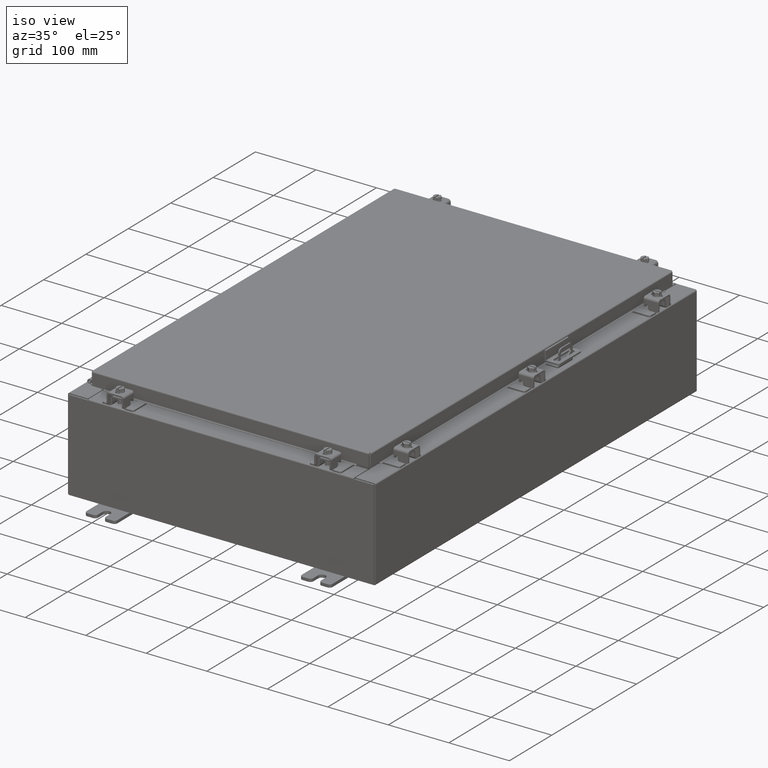
[diagram: clean part render]
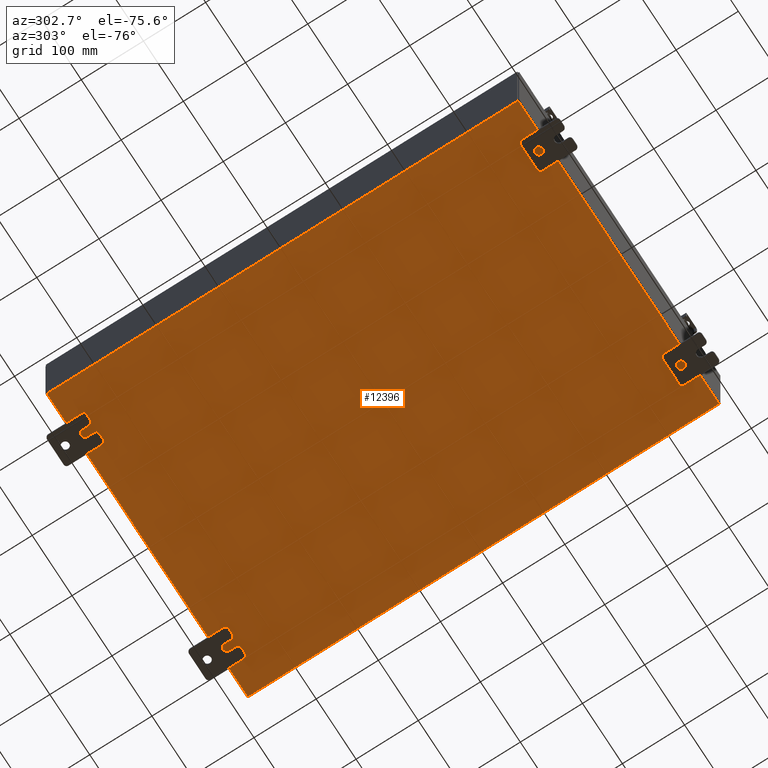
[diagram: tour spotlight — one face highlighted and labeled with its STEP entity id]
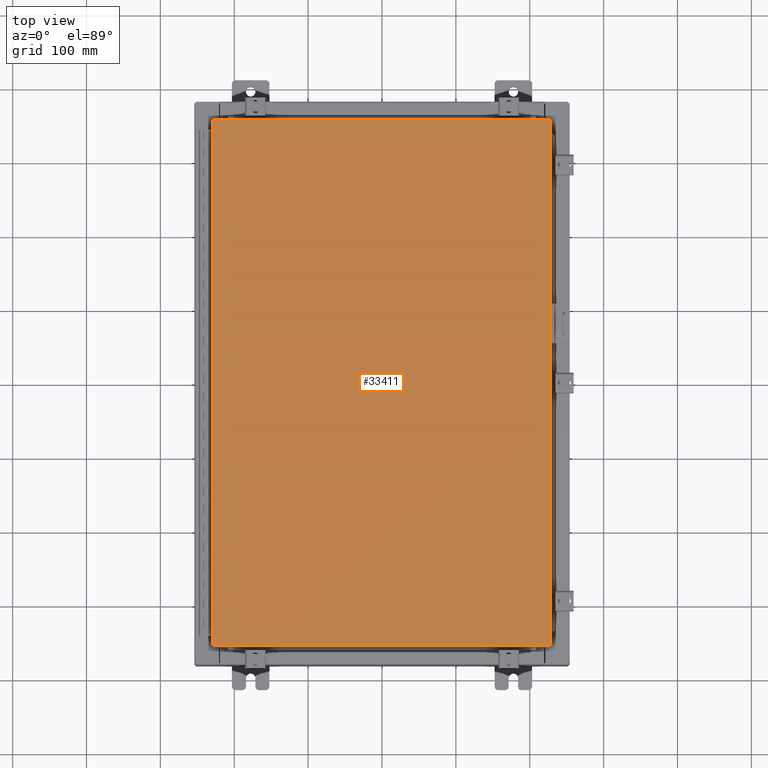
[diagram: tour spotlight — one face highlighted and labeled with its STEP entity id]
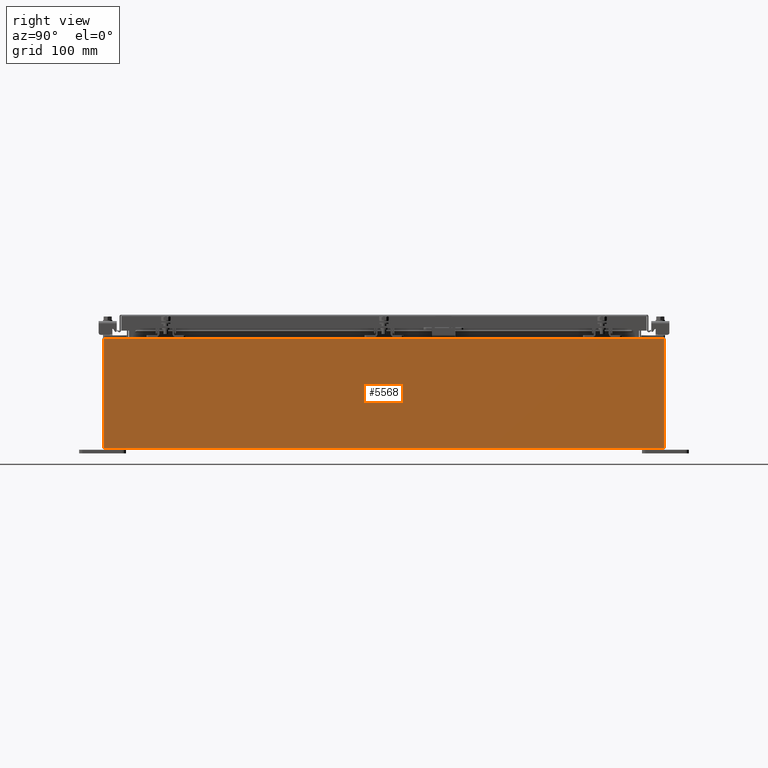
[diagram: tour spotlight — one face highlighted and labeled with its STEP entity id]
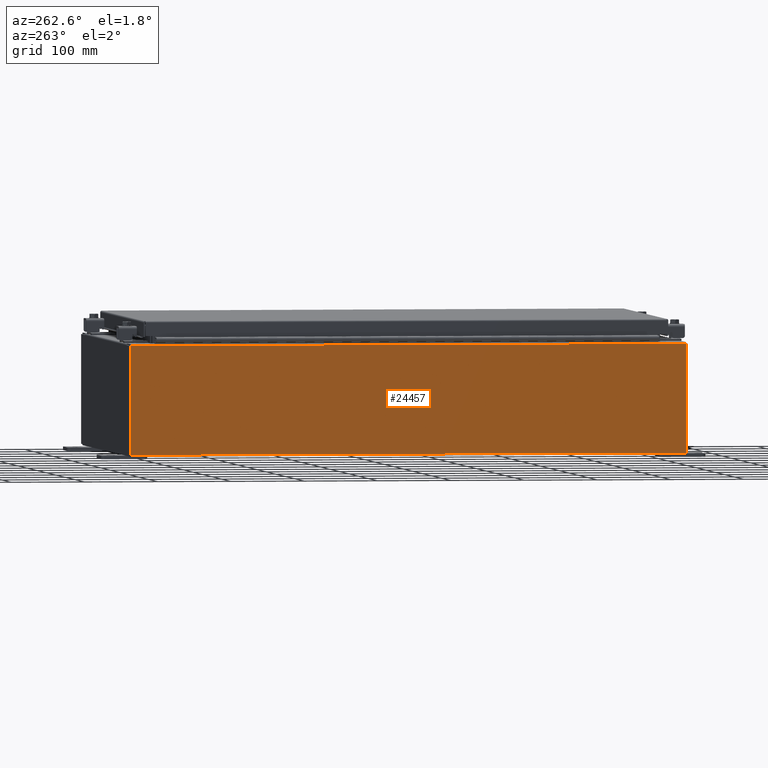
[diagram: tour spotlight — one face highlighted and labeled with its STEP entity id]
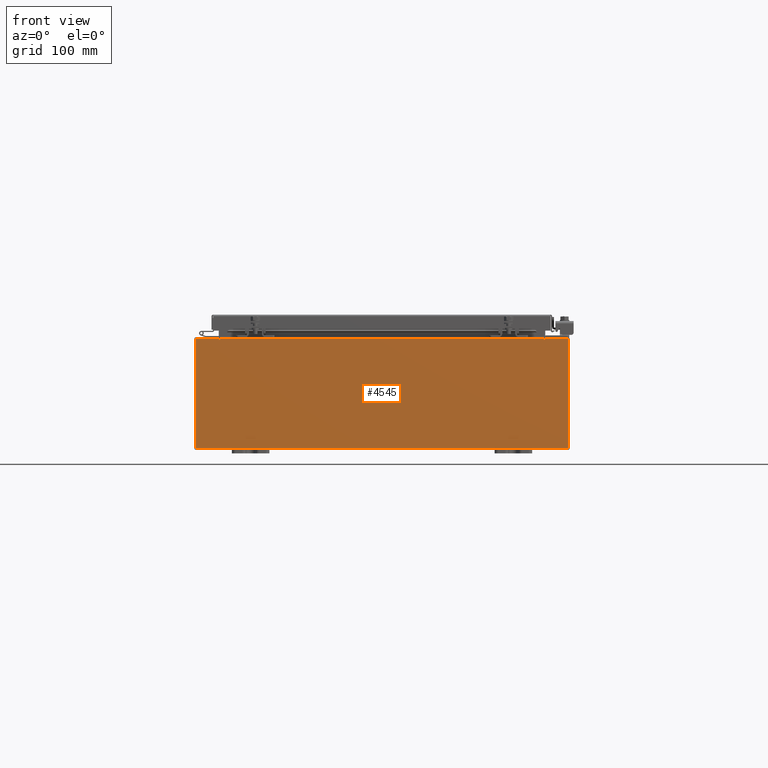
[diagram: tour spotlight — one face highlighted and labeled with its STEP entity id]
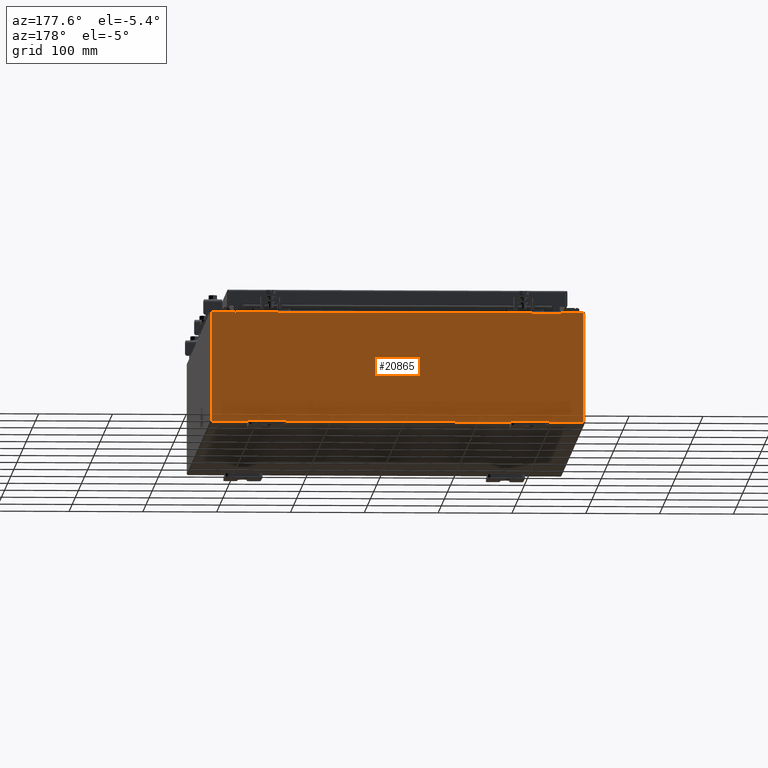
[diagram: tour spotlight — one face highlighted and labeled with its STEP entity id]
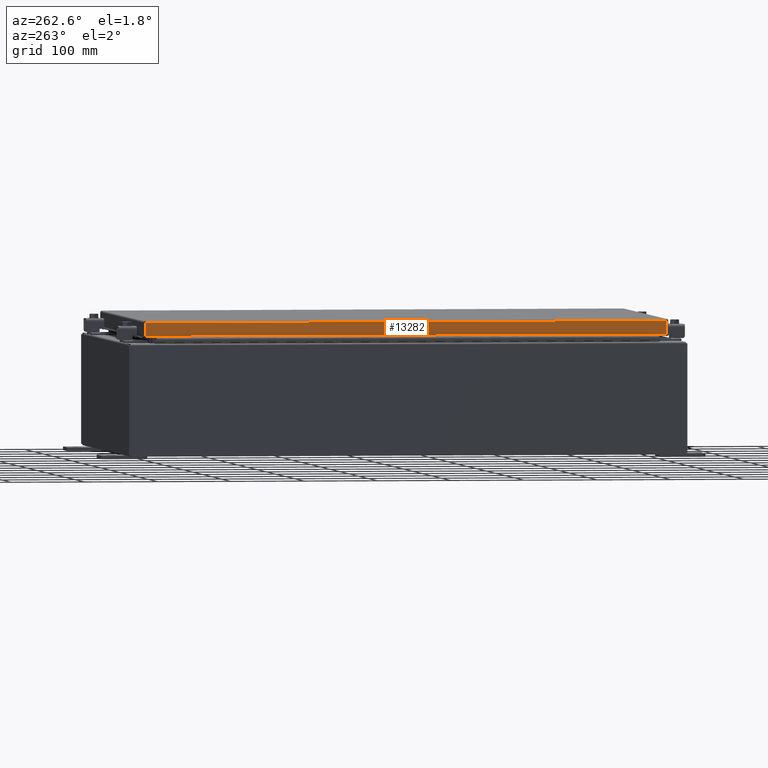
[diagram: tour spotlight — one face highlighted and labeled with its STEP entity id]
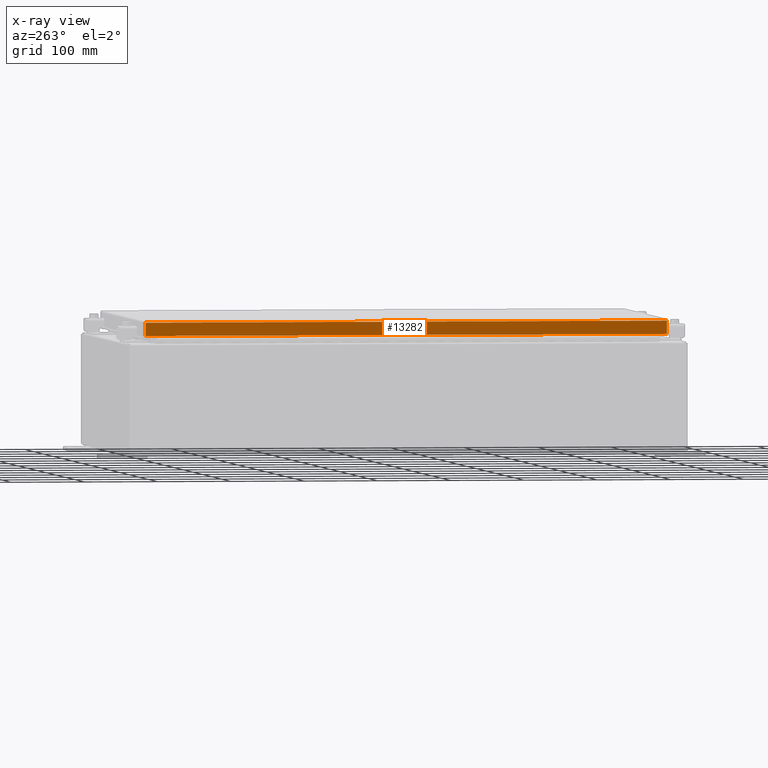
[diagram: x-ray of the same camera — body ghosted, this tour face saturated]
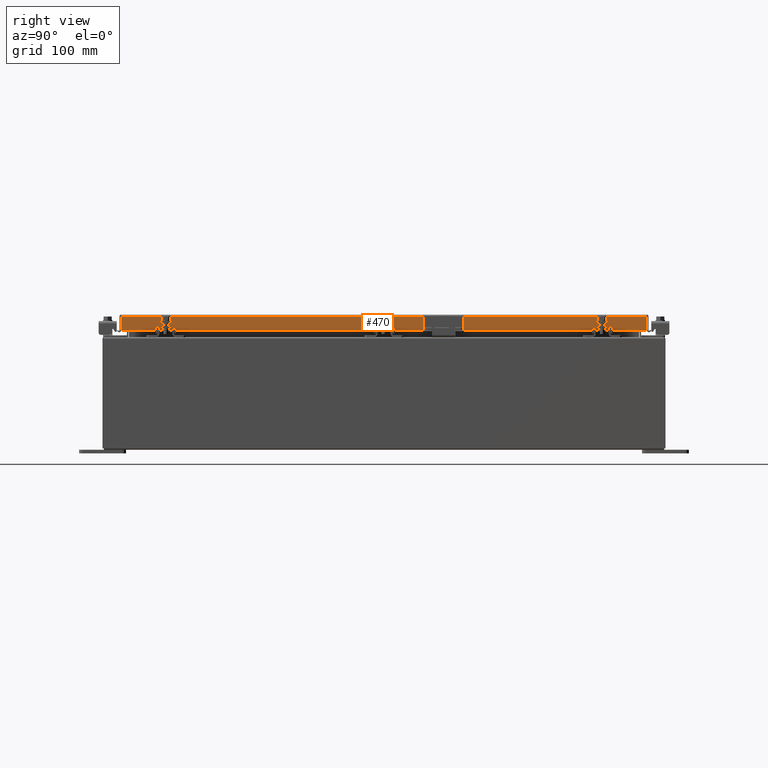
[diagram: tour spotlight — one face highlighted and labeled with its STEP entity id]
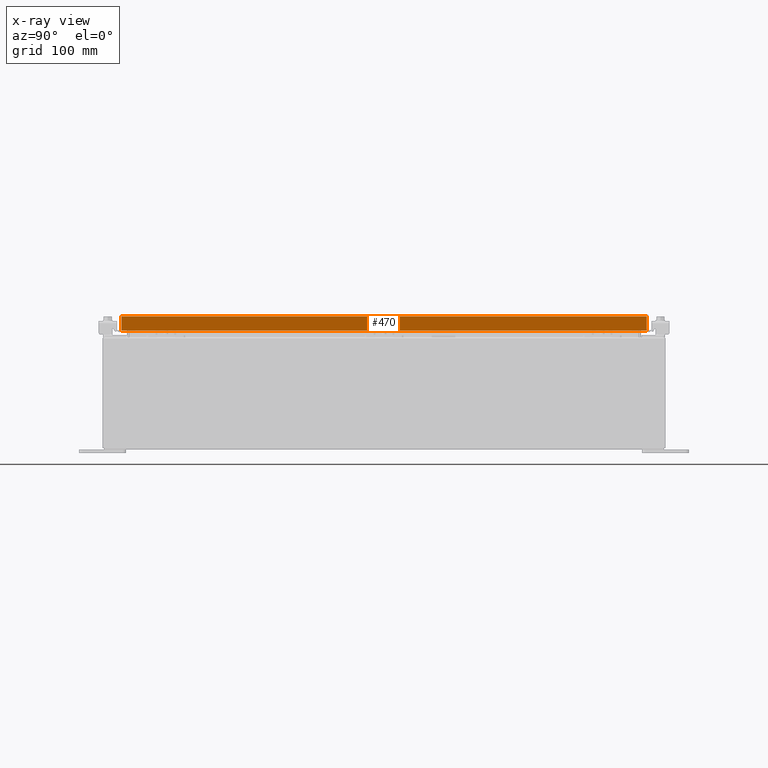
[diagram: x-ray of the same camera — body ghosted, this tour face saturated]
A machine part: a face-by-face anatomy tour. The part has 1990 B-rep faces; the first image is the clean iso view, then the 8 largest visible faces are spotlighted one at a time (largest first), each with its STEP entity span.

Face 1 — auxiliary view, entity #12396. In plain terms, the highlighted planar face has unit normal (0, 0, -1).
Definition (entity closure, byte-faithful):
#1669 = ORIENTED_EDGE ( 'NONE', *, *, #35438, .F. ) ;
#2707 = CARTESIAN_POINT ( 'NONE',  ( 0.0000000000000000000, 0.0000000000000000000, -0.07470000000000000300 ) ) ;
#4212 = VERTEX_POINT ( 'NONE', #4553 ) ;
#4553 = CARTESIAN_POINT ( 'NONE',  ( -9.912300000000000100, 14.92530000000000500, -0.07470000000000000300 ) ) ;
#6361 = EDGE_CURVE ( 'NONE', #30155, #15652, #19393, .T. ) ;
#6586 = VECTOR ( 'NONE', #32622, 39.37007874015748100 ) ;
#7478 = CARTESIAN_POINT ( 'NONE',  ( -10.00000000000000000, 14.92530000000000500, -0.07470000000000000300 ) ) ;
#9492 = EDGE_CURVE ( 'NONE', #30320, #4212, #29648, .T. ) ;
#11417 = DIRECTION ( 'NONE',  ( 0.0000000000000000000, 0.0000000000000000000, -1.000000000000000000 ) ) ;
#12332 = ORIENTED_EDGE ( 'NONE', *, *, #9492, .T. ) ;
#12375 = CARTESIAN_POINT ( 'NONE',  ( -9.912300000000000100, -14.92529999999999600, -0.07469999999999994700 ) ) ;
#12396 = ADVANCED_FACE ( 'NONE', ( #29039 ), #14226, .T. ) ;
#13120 = LINE ( 'NONE', #7478, #28488 ) ;
#13582 = CARTESIAN_POINT ( 'NONE',  ( 9.912300000000000100, 14.92530000000000500, -0.07469999999999994700 ) ) ;
#14226 = PLANE ( 'NONE',  #25449 ) ;
#14411 = CARTESIAN_POINT ( 'NONE',  ( -9.912300000000000100, -14.92529999999999600, -0.07469999999999994700 ) ) ;
#15652 = VERTEX_POINT ( 'NONE', #15908 ) ;
#15793 = VECTOR ( 'NONE', #30828, 39.37007874015748100 ) ;
#15908 = CARTESIAN_POINT ( 'NONE',  ( 9.912300000000000100, -14.92529999999999600, -0.07470000000000000300 ) ) ;
#16587 = EDGE_LOOP ( 'NONE', ( #22962, #12332, #1669, #20972 ) ) ;
#16951 = VECTOR ( 'NONE', #17139, 39.37007874015748100 ) ;
#17139 = DIRECTION ( 'NONE',  ( 1.000000000000000000, 0.0000000000000000000, 0.0000000000000000000 ) ) ;
#19393 = LINE ( 'NONE', #24874, #15793 ) ;
#20972 = ORIENTED_EDGE ( 'NONE', *, *, #6361, .T. ) ;
#22962 = ORIENTED_EDGE ( 'NONE', *, *, #30829, .F. ) ;
#24874 = CARTESIAN_POINT ( 'NONE',  ( 9.912300000000000100, 14.92530000000000500, -0.07469999999999994700 ) ) ;
#25449 = AXIS2_PLACEMENT_3D ( 'NONE', #2707, #11417, #31676 ) ;
#28488 = VECTOR ( 'NONE', #30590, 39.37007874015748100 ) ;
#29039 = FACE_OUTER_BOUND ( 'NONE', #16587, .T. ) ;
#29648 = LINE ( 'NONE', #12375, #6586 ) ;
#30155 = VERTEX_POINT ( 'NONE', #13582 ) ;
#30320 = VERTEX_POINT ( 'NONE', #14411 ) ;
#30590 = DIRECTION ( 'NONE',  ( -1.000000000000000000, -0.0000000000000000000, -0.0000000000000000000 ) ) ;
#30828 = DIRECTION ( 'NONE',  ( -0.0000000000000000000, -1.000000000000000000, -0.0000000000000000000 ) ) ;
#30829 = EDGE_CURVE ( 'NONE', #30320, #15652, #33272, .T. ) ;
#31676 = DIRECTION ( 'NONE',  ( -1.000000000000000000, 0.0000000000000000000, -0.0000000000000000000 ) ) ;
#31715 = CARTESIAN_POINT ( 'NONE',  ( -10.00000000000000000, -14.92529999999999600, -0.07470000000000000300 ) ) ;
#32622 = DIRECTION ( 'NONE',  ( -0.0000000000000000000, 1.000000000000000000, -0.0000000000000000000 ) ) ;
#33272 = LINE ( 'NONE', #31715, #16951 ) ;
#35438 = EDGE_CURVE ( 'NONE', #30155, #4212, #13120, .T. ) ;

Face 2 — top view, entity #33411. In plain terms, the highlighted planar face has unit normal (0, 0, -1).
Definition (entity closure, byte-faithful):
#662 = DIRECTION ( 'NONE',  ( 0.0000000000000000000, -1.000000000000000000, 0.0000000000000000000 ) ) ;
#1158 = DIRECTION ( 'NONE',  ( 1.000000000000000000, -0.0000000000000000000, -0.0000000000000000000 ) ) ;
#1172 = VECTOR ( 'NONE', #28872, 39.37007874015748100 ) ;
#3537 = DIRECTION ( 'NONE',  ( -1.000000000000000000, 0.0000000000000000000, -0.0000000000000000000 ) ) ;
#3617 = LINE ( 'NONE', #35573, #18078 ) ;
#4246 = ORIENTED_EDGE ( 'NONE', *, *, #33424, .T. ) ;
#4256 = AXIS2_PLACEMENT_3D ( 'NONE', #17922, #20811, #3537 ) ;
#5541 = EDGE_CURVE ( 'NONE', #19054, #28630, #3617, .T. ) ;
#7177 = VECTOR ( 'NONE', #1158, 39.37007874015748100 ) ;
#8843 = LINE ( 'NONE', #28743, #1172 ) ;
#9013 = ORIENTED_EDGE ( 'NONE', *, *, #21008, .T. ) ;
#9112 = CARTESIAN_POINT ( 'NONE',  ( -8.990299999999997700, 14.00630000000000100, -2.048885995248197400E-016 ) ) ;
#11879 = ORIENTED_EDGE ( 'NONE', *, *, #5541, .T. ) ;
#12240 = LINE ( 'NONE', #23759, #19013 ) ;
#13957 = LINE ( 'NONE', #24251, #7177 ) ;
#15007 = VERTEX_POINT ( 'NONE', #27213 ) ;
#17922 = CARTESIAN_POINT ( 'NONE',  ( 0.0000000000000000000, 0.0000000000000000000, 0.0000000000000000000 ) ) ;
#18078 = VECTOR ( 'NONE', #24043, 39.37007874015748100 ) ;
#19013 = VECTOR ( 'NONE', #662, 39.37007874015748100 ) ;
#19054 = VERTEX_POINT ( 'NONE', #21519 ) ;
#19700 = EDGE_LOOP ( 'NONE', ( #23835, #9013, #11879, #4246 ) ) ;
#19886 = FACE_OUTER_BOUND ( 'NONE', #19700, .T. ) ;
#20811 = DIRECTION ( 'NONE',  ( 0.0000000000000000000, 0.0000000000000000000, -1.000000000000000000 ) ) ;
#20848 = VERTEX_POINT ( 'NONE', #25319 ) ;
#21008 = EDGE_CURVE ( 'NONE', #20848, #19054, #8843, .T. ) ;
#21519 = CARTESIAN_POINT ( 'NONE',  ( 8.990300000000001300, 14.00629999999999800, -2.048885995248197400E-016 ) ) ;
#23759 = CARTESIAN_POINT ( 'NONE',  ( -8.990299999999997700, 14.00630000000000100, -2.048885995248197400E-016 ) ) ;
#23835 = ORIENTED_EDGE ( 'NONE', *, *, #28803, .T. ) ;
#24043 = DIRECTION ( 'NONE',  ( -1.000000000000000000, -0.0000000000000000000, -0.0000000000000000000 ) ) ;
#24251 = CARTESIAN_POINT ( 'NONE',  ( -8.990299999999996000, -14.00629999999999800, 1.963515745446189200E-015 ) ) ;
#25319 = CARTESIAN_POINT ( 'NONE',  ( 8.990300000000001300, -14.00629999999999800, -7.512581982576723400E-016 ) ) ;
#27213 = CARTESIAN_POINT ( 'NONE',  ( -8.990299999999997700, -14.00629999999999800, 1.980589795406590900E-015 ) ) ;
#28630 = VERTEX_POINT ( 'NONE', #9112 ) ;
#28743 = CARTESIAN_POINT ( 'NONE',  ( 8.990300000000001300, -14.00629999999999800, -7.512581982576723400E-016 ) ) ;
#28803 = EDGE_CURVE ( 'NONE', #15007, #20848, #13957, .T. ) ;
#28872 = DIRECTION ( 'NONE',  ( 0.0000000000000000000, 1.000000000000000000, 0.0000000000000000000 ) ) ;
#33411 = ADVANCED_FACE ( 'NONE', ( #19886 ), #35288, .F. ) ;
#33424 = EDGE_CURVE ( 'NONE', #28630, #15007, #12240, .T. ) ;
#35288 = PLANE ( 'NONE',  #4256 ) ;
#35573 = CARTESIAN_POINT ( 'NONE',  ( 8.990300000000001300, 14.00629999999999800, -2.048885995248197400E-016 ) ) ;

Face 3 — right view, entity #5568. In plain terms, the highlighted planar face has unit normal (-1, 0, 0).
Definition (entity closure, byte-faithful):
#1037 = AXIS2_PLACEMENT_3D ( 'NONE', #9638, #3938, #24170 ) ;
#1212 = DIRECTION ( 'NONE',  ( 3.319545939341922800E-015, 0.0000000000000000000, 1.000000000000000000 ) ) ;
#1457 = CARTESIAN_POINT ( 'NONE',  ( 10.00000000000002000, 14.92530000000000700, 5.837600000000001000 ) ) ;
#2627 = DIRECTION ( 'NONE',  ( -0.0000000000000000000, -1.000000000000000000, -0.0000000000000000000 ) ) ;
#2732 = FACE_OUTER_BOUND ( 'NONE', #26141, .T. ) ;
#3723 = ORIENTED_EDGE ( 'NONE', *, *, #10185, .T. ) ;
#3938 = DIRECTION ( 'NONE',  ( -1.000000000000000000, 0.0000000000000000000, 3.319545939341922000E-015 ) ) ;
#5524 = CARTESIAN_POINT ( 'NONE',  ( 10.00000000000002000, 14.92530000000000700, 5.837600000000001000 ) ) ;
#5568 = ADVANCED_FACE ( 'NONE', ( #2732 ), #29878, .F. ) ;
#6588 = ORIENTED_EDGE ( 'NONE', *, *, #8715, .T. ) ;
#7192 = VERTEX_POINT ( 'NONE', #9513 ) ;
#8467 = ORIENTED_EDGE ( 'NONE', *, *, #20316, .T. ) ;
#8715 = EDGE_CURVE ( 'NONE', #7192, #35010, #15672, .T. ) ;
#9513 = CARTESIAN_POINT ( 'NONE',  ( 10.00000000000002000, -14.92529999999999800, 5.837600000000001000 ) ) ;
#9638 = CARTESIAN_POINT ( 'NONE',  ( 10.00000000000000000, 0.0000000000000000000, -3.345627304943080600E-014 ) ) ;
#10185 = EDGE_CURVE ( 'NONE', #25926, #30049, #30962, .T. ) ;
#15089 = VECTOR ( 'NONE', #35944, 39.37007874015748100 ) ;
#15672 = LINE ( 'NONE', #17912, #29252 ) ;
#17912 = CARTESIAN_POINT ( 'NONE',  ( 10.00000000000000000, -14.92529999999999600, -3.345627304943080600E-014 ) ) ;
#18499 = CARTESIAN_POINT ( 'NONE',  ( 10.00000000000000000, 14.92530000000000500, -3.345627304943080600E-014 ) ) ;
#20316 = EDGE_CURVE ( 'NONE', #30049, #7192, #31530, .T. ) ;
#22888 = VECTOR ( 'NONE', #2627, 39.37007874015748100 ) ;
#23045 = EDGE_CURVE ( 'NONE', #25926, #35010, #37267, .T. ) ;
#23251 = VECTOR ( 'NONE', #1212, 39.37007874015748100 ) ;
#24170 = DIRECTION ( 'NONE',  ( 3.319545939341922000E-015, 0.0000000000000000000, 1.000000000000000000 ) ) ;
#24391 = CARTESIAN_POINT ( 'NONE',  ( 10.00000000000000000, -14.92529999999999600, 0.01299999999999986400 ) ) ;
#24552 = ORIENTED_EDGE ( 'NONE', *, *, #23045, .F. ) ;
#25926 = VERTEX_POINT ( 'NONE', #37053 ) ;
#26141 = EDGE_LOOP ( 'NONE', ( #8467, #6588, #24552, #3723 ) ) ;
#29252 = VECTOR ( 'NONE', #35274, 39.37007874015748100 ) ;
#29878 = PLANE ( 'NONE',  #1037 ) ;
#30049 = VERTEX_POINT ( 'NONE', #1457 ) ;
#30962 = LINE ( 'NONE', #18499, #23251 ) ;
#31530 = LINE ( 'NONE', #5524, #22888 ) ;
#34561 = CARTESIAN_POINT ( 'NONE',  ( 10.00000000000000000, -14.92529999999999600, 0.01299999999999985900 ) ) ;
#35010 = VERTEX_POINT ( 'NONE', #34561 ) ;
#35274 = DIRECTION ( 'NONE',  ( -3.319545939341922800E-015, 0.0000000000000000000, -1.000000000000000000 ) ) ;
#35944 = DIRECTION ( 'NONE',  ( -0.0000000000000000000, -1.000000000000000000, -0.0000000000000000000 ) ) ;
#37053 = CARTESIAN_POINT ( 'NONE',  ( 10.00000000000000000, 14.92530000000000500, 0.01299999999999986400 ) ) ;
#37267 = LINE ( 'NONE', #24391, #15089 ) ;

Face 4 — auxiliary view, entity #24457. In plain terms, the highlighted planar face has unit normal (1, 0, 0).
Definition (entity closure, byte-faithful):
#1921 = CARTESIAN_POINT ( 'NONE',  ( -10.00000000000000000, 14.92530000000000500, 0.01299999999999986400 ) ) ;
#2066 = CARTESIAN_POINT ( 'NONE',  ( -10.00000000000000000, 14.92530000000000500, 0.01299999999999985900 ) ) ;
#3182 = VERTEX_POINT ( 'NONE', #5619 ) ;
#3654 = EDGE_CURVE ( 'NONE', #24980, #3182, #22287, .T. ) ;
#4010 = VECTOR ( 'NONE', #29810, 39.37007874015748100 ) ;
#4863 = CARTESIAN_POINT ( 'NONE',  ( -10.00000000000001800, -14.92529999999999600, 5.837599999999999200 ) ) ;
#5619 = CARTESIAN_POINT ( 'NONE',  ( -10.00000000000001800, -14.92529999999999600, 5.837599999999999200 ) ) ;
#6686 = CARTESIAN_POINT ( 'NONE',  ( -10.00000000000000000, 14.92530000000000500, -3.345627304943080600E-014 ) ) ;
#8825 = CARTESIAN_POINT ( 'NONE',  ( -10.00000000000000000, -14.92529999999999600, -3.345627304943080600E-014 ) ) ;
#11818 = ORIENTED_EDGE ( 'NONE', *, *, #3654, .T. ) ;
#13500 = VERTEX_POINT ( 'NONE', #22073 ) ;
#14073 = PLANE ( 'NONE',  #14945 ) ;
#14220 = EDGE_LOOP ( 'NONE', ( #33147, #28319, #30117, #11818 ) ) ;
#14945 = AXIS2_PLACEMENT_3D ( 'NONE', #28483, #19726, #16975 ) ;
#14986 = FACE_OUTER_BOUND ( 'NONE', #14220, .T. ) ;
#15524 = VECTOR ( 'NONE', #20158, 39.37007874015748100 ) ;
#15813 = VECTOR ( 'NONE', #16311, 39.37007874015748100 ) ;
#16311 = DIRECTION ( 'NONE',  ( -0.0000000000000000000, 1.000000000000000000, -0.0000000000000000000 ) ) ;
#16368 = DIRECTION ( 'NONE',  ( 0.0000000000000000000, 1.000000000000000000, 0.0000000000000000000 ) ) ;
#16975 = DIRECTION ( 'NONE',  ( 3.319545939341922800E-015, 0.0000000000000000000, -1.000000000000000000 ) ) ;
#19381 = LINE ( 'NONE', #6686, #4010 ) ;
#19666 = EDGE_CURVE ( 'NONE', #24980, #36715, #23487, .T. ) ;
#19726 = DIRECTION ( 'NONE',  ( 1.000000000000000000, 0.0000000000000000000, 3.319545939341922800E-015 ) ) ;
#20043 = EDGE_CURVE ( 'NONE', #13500, #36715, #19381, .T. ) ;
#20158 = DIRECTION ( 'NONE',  ( -3.319545939341922800E-015, 0.0000000000000000000, 1.000000000000000000 ) ) ;
#20761 = CARTESIAN_POINT ( 'NONE',  ( -10.00000000000000000, -14.92529999999999600, 0.01299999999999986400 ) ) ;
#22073 = CARTESIAN_POINT ( 'NONE',  ( -10.00000000000002000, 14.92530000000000500, 5.837599999999999200 ) ) ;
#22287 = LINE ( 'NONE', #8825, #15524 ) ;
#23487 = LINE ( 'NONE', #1921, #15813 ) ;
#23694 = LINE ( 'NONE', #4863, #31415 ) ;
#24457 = ADVANCED_FACE ( 'NONE', ( #14986 ), #14073, .F. ) ;
#24980 = VERTEX_POINT ( 'NONE', #20761 ) ;
#28319 = ORIENTED_EDGE ( 'NONE', *, *, #20043, .T. ) ;
#28483 = CARTESIAN_POINT ( 'NONE',  ( -10.00000000000000000, 0.0000000000000000000, -3.345627304943080600E-014 ) ) ;
#29810 = DIRECTION ( 'NONE',  ( 3.319545939341922800E-015, 0.0000000000000000000, -1.000000000000000000 ) ) ;
#30117 = ORIENTED_EDGE ( 'NONE', *, *, #19666, .F. ) ;
#31338 = EDGE_CURVE ( 'NONE', #3182, #13500, #23694, .T. ) ;
#31415 = VECTOR ( 'NONE', #16368, 39.37007874015748100 ) ;
#33147 = ORIENTED_EDGE ( 'NONE', *, *, #31338, .T. ) ;
#36715 = VERTEX_POINT ( 'NONE', #2066 ) ;

Face 5 — front view, entity #4545. In plain terms, the highlighted planar face has unit normal (-0, 1, -0).
Definition (entity closure, byte-faithful):
#12 = VERTEX_POINT ( 'NONE', #6194 ) ;
#51 = CARTESIAN_POINT ( 'NONE',  ( -8.637199999999996400, -0.0000000000000000000, 2.874950000000000600 ) ) ;
#803 = ORIENTED_EDGE ( 'NONE', *, *, #37017, .T. ) ;
#944 = DIRECTION ( 'NONE',  ( 0.0000000000000000000, 0.0000000000000000000, -1.000000000000000000 ) ) ;
#990 = DIRECTION ( 'NONE',  ( -0.0000000000000000000, 1.000000000000000000, -0.0000000000000000000 ) ) ;
#991 = CARTESIAN_POINT ( 'NONE',  ( -9.925300000000000000, 0.0000000000000000000, 2.925300000000000500 ) ) ;
#996 = EDGE_LOOP ( 'NONE', ( #19939, #8895, #7211, #2397, #1901, #25760, #35436, #25681, #803, #25202, #18672, #11573 ) ) ;
#1080 = CARTESIAN_POINT ( 'NONE',  ( 8.655875000000000000, 0.0000000000000000000, 2.874950000000000600 ) ) ;
#1236 = VECTOR ( 'NONE', #4636, 39.37007874015748100 ) ;
#1576 = VERTEX_POINT ( 'NONE', #22920 ) ;
#1901 = ORIENTED_EDGE ( 'NONE', *, *, #18307, .F. ) ;
#2142 = EDGE_CURVE ( 'NONE', #20037, #1576, #27884, .T. ) ;
#2204 = VECTOR ( 'NONE', #8912, 39.37007874015748100 ) ;
#2397 = ORIENTED_EDGE ( 'NONE', *, *, #28043, .T. ) ;
#2413 = VERTEX_POINT ( 'NONE', #28201 ) ;
#2760 = LINE ( 'NONE', #9133, #9531 ) ;
#4545 = ADVANCED_FACE ( 'NONE', ( #26766 ), #32135, .F. ) ;
#4636 = DIRECTION ( 'NONE',  ( 1.000000000000000000, 0.0000000000000000000, 0.0000000000000000000 ) ) ;
#4773 = EDGE_CURVE ( 'NONE', #12450, #6540, #5966, .T. ) ;
#5142 = CARTESIAN_POINT ( 'NONE',  ( -8.674549999999996400, -0.0000000000000000000, 0.0000000000000000000 ) ) ;
#5672 = CARTESIAN_POINT ( 'NONE',  ( -9.925300000000000000, 0.0000000000000000000, -2.925299999999999600 ) ) ;
#5966 = CIRCLE ( 'NONE', #27169, 0.01867500000000003900 ) ;
#6194 = CARTESIAN_POINT ( 'NONE',  ( 9.925300000000000000, 0.0000000000000000000, -2.925299999999999600 ) ) ;
#6540 = VERTEX_POINT ( 'NONE', #11323 ) ;
#7211 = ORIENTED_EDGE ( 'NONE', *, *, #24136, .F. ) ;
#7791 = AXIS2_PLACEMENT_3D ( 'NONE', #11865, #14797, #35033 ) ;
#8895 = ORIENTED_EDGE ( 'NONE', *, *, #4773, .F. ) ;
#8912 = DIRECTION ( 'NONE',  ( 1.000000000000000000, 0.0000000000000000000, 0.0000000000000000000 ) ) ;
#9133 = CARTESIAN_POINT ( 'NONE',  ( -9.925300000000000000, 0.0000000000000000000, 2.925300000000000500 ) ) ;
#9531 = VECTOR ( 'NONE', #29365, 39.37007874015748100 ) ;
#9571 = CARTESIAN_POINT ( 'NONE',  ( 8.637200000000000000, 0.0000000000000000000, 0.0000000000000000000 ) ) ;
#9785 = DIRECTION ( 'NONE',  ( 0.0000000000000000000, 0.0000000000000000000, -1.000000000000000000 ) ) ;
#9835 = VERTEX_POINT ( 'NONE', #16756 ) ;
#9845 = EDGE_CURVE ( 'NONE', #26308, #20037, #34183, .T. ) ;
#9855 = LINE ( 'NONE', #23308, #2204 ) ;
#10271 = VECTOR ( 'NONE', #35148, 39.37007874015748100 ) ;
#11323 = CARTESIAN_POINT ( 'NONE',  ( -8.674549999999996400, 0.0000000000000000000, 2.874950000000000600 ) ) ;
#11573 = ORIENTED_EDGE ( 'NONE', *, *, #37266, .T. ) ;
#11865 = CARTESIAN_POINT ( 'NONE',  ( 0.0000000000000000000, 0.0000000000000000000, 0.0000000000000000000 ) ) ;
#12370 = VERTEX_POINT ( 'NONE', #34335 ) ;
#12450 = VERTEX_POINT ( 'NONE', #51 ) ;
#12478 = VERTEX_POINT ( 'NONE', #29130 ) ;
#12694 = LINE ( 'NONE', #9571, #28078 ) ;
#13754 = VECTOR ( 'NONE', #28806, 39.37007874015748100 ) ;
#14797 = DIRECTION ( 'NONE',  ( 0.0000000000000000000, -1.000000000000000000, 0.0000000000000000000 ) ) ;
#14909 = CARTESIAN_POINT ( 'NONE',  ( 9.925300000000000000, 0.0000000000000000000, 2.925300000000000500 ) ) ;
#14988 = AXIS2_PLACEMENT_3D ( 'NONE', #1080, #990, #944 ) ;
#15514 = VERTEX_POINT ( 'NONE', #18029 ) ;
#15515 = DIRECTION ( 'NONE',  ( -0.0000000000000000000, 1.000000000000000000, -0.0000000000000000000 ) ) ;
#16400 = EDGE_CURVE ( 'NONE', #12, #37382, #29122, .T. ) ;
#16614 = EDGE_CURVE ( 'NONE', #26308, #15514, #21832, .T. ) ;
#16756 = CARTESIAN_POINT ( 'NONE',  ( 8.637200000000000000, 0.0000000000000000000, 2.912300000000000600 ) ) ;
#16883 = DIRECTION ( 'NONE',  ( -6.510859170600007400E-014, 0.0000000000000000000, -1.000000000000000000 ) ) ;
#18029 = CARTESIAN_POINT ( 'NONE',  ( 9.925300000000000000, 0.0000000000000000000, 2.925300000000000500 ) ) ;
#18147 = CARTESIAN_POINT ( 'NONE',  ( 8.674550000000000000, 0.0000000000000000000, 2.874950000000000600 ) ) ;
#18307 = EDGE_CURVE ( 'NONE', #1576, #9835, #12694, .T. ) ;
#18541 = CARTESIAN_POINT ( 'NONE',  ( 8.674550000000001800, 0.0000000000000000000, 2.925300000000000500 ) ) ;
#18672 = ORIENTED_EDGE ( 'NONE', *, *, #24637, .T. ) ;
#19644 = VECTOR ( 'NONE', #16883, 39.37007874015748100 ) ;
#19939 = ORIENTED_EDGE ( 'NONE', *, *, #32652, .F. ) ;
#20037 = VERTEX_POINT ( 'NONE', #18147 ) ;
#20403 = LINE ( 'NONE', #5142, #28137 ) ;
#21832 = LINE ( 'NONE', #991, #22746 ) ;
#22746 = VECTOR ( 'NONE', #35630, 39.37007874015748100 ) ;
#22920 = CARTESIAN_POINT ( 'NONE',  ( 8.637200000000000000, 0.0000000000000000000, 2.874950000000000600 ) ) ;
#23308 = CARTESIAN_POINT ( 'NONE',  ( -8.637200000000000000, 1.024442997624098700E-016, 2.912300000000000600 ) ) ;
#24136 = EDGE_CURVE ( 'NONE', #12478, #12450, #32679, .T. ) ;
#24197 = CARTESIAN_POINT ( 'NONE',  ( -8.637199999999996400, -0.0000000000000000000, 0.0000000000000000000 ) ) ;
#24269 = LINE ( 'NONE', #24738, #1236 ) ;
#24637 = EDGE_CURVE ( 'NONE', #37382, #12370, #2760, .T. ) ;
#24738 = CARTESIAN_POINT ( 'NONE',  ( -9.925300000000000000, 0.0000000000000000000, 2.925300000000000500 ) ) ;
#25202 = ORIENTED_EDGE ( 'NONE', *, *, #16400, .T. ) ;
#25360 = DIRECTION ( 'NONE',  ( 0.0000000000000000000, 0.0000000000000000000, 1.000000000000000000 ) ) ;
#25681 = ORIENTED_EDGE ( 'NONE', *, *, #16614, .T. ) ;
#25760 = ORIENTED_EDGE ( 'NONE', *, *, #2142, .F. ) ;
#26308 = VERTEX_POINT ( 'NONE', #18541 ) ;
#26766 = FACE_OUTER_BOUND ( 'NONE', #996, .T. ) ;
#27169 = AXIS2_PLACEMENT_3D ( 'NONE', #32873, #15515, #35759 ) ;
#27884 = CIRCLE ( 'NONE', #14988, 0.01867500000000003900 ) ;
#28043 = EDGE_CURVE ( 'NONE', #12478, #9835, #9855, .T. ) ;
#28078 = VECTOR ( 'NONE', #32753, 39.37007874015748100 ) ;
#28137 = VECTOR ( 'NONE', #25360, 39.37007874015748100 ) ;
#28201 = CARTESIAN_POINT ( 'NONE',  ( -8.674549999999996400, 0.0000000000000000000, 2.925300000000000500 ) ) ;
#28806 = DIRECTION ( 'NONE',  ( -1.000000000000000000, -0.0000000000000000000, -0.0000000000000000000 ) ) ;
#29122 = LINE ( 'NONE', #5672, #13754 ) ;
#29130 = CARTESIAN_POINT ( 'NONE',  ( -8.637199999999996400, 1.024442997624098700E-016, 2.912300000000000600 ) ) ;
#29365 = DIRECTION ( 'NONE',  ( -0.0000000000000000000, -0.0000000000000000000, 1.000000000000000000 ) ) ;
#31188 = CARTESIAN_POINT ( 'NONE',  ( -9.925300000000000000, 0.0000000000000000000, -2.925299999999999600 ) ) ;
#32135 = PLANE ( 'NONE',  #7791 ) ;
#32652 = EDGE_CURVE ( 'NONE', #6540, #2413, #20403, .T. ) ;
#32679 = LINE ( 'NONE', #24197, #33577 ) ;
#32753 = DIRECTION ( 'NONE',  ( 0.0000000000000000000, 0.0000000000000000000, 1.000000000000000000 ) ) ;
#32873 = CARTESIAN_POINT ( 'NONE',  ( -8.655874999999996400, 0.0000000000000000000, 2.874950000000000600 ) ) ;
#33379 = LINE ( 'NONE', #14909, #10271 ) ;
#33577 = VECTOR ( 'NONE', #9785, 39.37007874015748100 ) ;
#34183 = LINE ( 'NONE', #34248, #19644 ) ;
#34248 = CARTESIAN_POINT ( 'NONE',  ( 8.674549999999813500, -0.0000000000000000000, -5.647877341832707700E-013 ) ) ;
#34335 = CARTESIAN_POINT ( 'NONE',  ( -9.925300000000000000, 0.0000000000000000000, 2.925300000000000500 ) ) ;
#35033 = DIRECTION ( 'NONE',  ( 0.0000000000000000000, -0.0000000000000000000, -1.000000000000000000 ) ) ;
#35148 = DIRECTION ( 'NONE',  ( 0.0000000000000000000, 0.0000000000000000000, -1.000000000000000000 ) ) ;
#35436 = ORIENTED_EDGE ( 'NONE', *, *, #9845, .F. ) ;
#35630 = DIRECTION ( 'NONE',  ( 1.000000000000000000, 0.0000000000000000000, 0.0000000000000000000 ) ) ;
#35759 = DIRECTION ( 'NONE',  ( 0.0000000000000000000, 0.0000000000000000000, -1.000000000000000000 ) ) ;
#37017 = EDGE_CURVE ( 'NONE', #15514, #12, #33379, .T. ) ;
#37266 = EDGE_CURVE ( 'NONE', #12370, #2413, #24269, .T. ) ;
#37382 = VERTEX_POINT ( 'NONE', #31188 ) ;

Face 6 — auxiliary view, entity #20865. In plain terms, the highlighted planar face has unit normal (0, -1, 0).
Definition (entity closure, byte-faithful):
#27 = AXIS2_PLACEMENT_3D ( 'NONE', #23372, #6082, #26292 ) ;
#687 = CARTESIAN_POINT ( 'NONE',  ( 8.674550000000001800, 0.0000000000000000000, 2.925300000000000500 ) ) ;
#984 = CARTESIAN_POINT ( 'NONE',  ( -8.637199999999996400, -0.0000000000000000000, 0.0000000000000000000 ) ) ;
#1181 = CARTESIAN_POINT ( 'NONE',  ( -9.925300000000000000, 0.0000000000000000000, -2.925299999999999600 ) ) ;
#2183 = VERTEX_POINT ( 'NONE', #27207 ) ;
#2187 = VECTOR ( 'NONE', #28202, 39.37007874015748100 ) ;
#2263 = DIRECTION ( 'NONE',  ( 0.0000000000000000000, 0.0000000000000000000, 1.000000000000000000 ) ) ;
#2304 = EDGE_CURVE ( 'NONE', #15656, #13732, #22398, .T. ) ;
#4028 = DIRECTION ( 'NONE',  ( -1.000000000000000000, -0.0000000000000000000, -0.0000000000000000000 ) ) ;
#4528 = EDGE_CURVE ( 'NONE', #23331, #14233, #35394, .T. ) ;
#4581 = CARTESIAN_POINT ( 'NONE',  ( 8.655875000000000000, 0.0000000000000000000, 2.874950000000000600 ) ) ;
#5224 = CARTESIAN_POINT ( 'NONE',  ( 0.0000000000000000000, 0.0000000000000000000, 0.0000000000000000000 ) ) ;
#5689 = FACE_OUTER_BOUND ( 'NONE', #19990, .T. ) ;
#5707 = CIRCLE ( 'NONE', #5871, 0.01867500000000003900 ) ;
#5871 = AXIS2_PLACEMENT_3D ( 'NONE', #4581, #24818, #7526 ) ;
#6082 = DIRECTION ( 'NONE',  ( -0.0000000000000000000, 1.000000000000000000, -0.0000000000000000000 ) ) ;
#6154 = CARTESIAN_POINT ( 'NONE',  ( 9.925300000000000000, 0.0000000000000000000, 2.925300000000000500 ) ) ;
#6799 = ORIENTED_EDGE ( 'NONE', *, *, #4528, .F. ) ;
#7154 = CARTESIAN_POINT ( 'NONE',  ( 9.925300000000000000, 0.0000000000000000000, 2.925300000000000500 ) ) ;
#7433 = ORIENTED_EDGE ( 'NONE', *, *, #2304, .T. ) ;
#7526 = DIRECTION ( 'NONE',  ( 0.0000000000000000000, 0.0000000000000000000, -1.000000000000000000 ) ) ;
#7630 = CARTESIAN_POINT ( 'NONE',  ( -9.925300000000000000, 0.0000000000000000000, 2.925300000000000500 ) ) ;
#8144 = DIRECTION ( 'NONE',  ( 0.0000000000000000000, -0.0000000000000000000, -1.000000000000000000 ) ) ;
#8928 = VECTOR ( 'NONE', #26362, 39.37007874015748100 ) ;
#9051 = ORIENTED_EDGE ( 'NONE', *, *, #30098, .F. ) ;
#10179 = CARTESIAN_POINT ( 'NONE',  ( -9.925300000000000000, 0.0000000000000000000, 2.925300000000000500 ) ) ;
#10469 = CARTESIAN_POINT ( 'NONE',  ( -9.925300000000000000, 0.0000000000000000000, -2.925299999999999600 ) ) ;
#11084 = CARTESIAN_POINT ( 'NONE',  ( 8.637200000000000000, 0.0000000000000000000, 0.0000000000000000000 ) ) ;
#11478 = VECTOR ( 'NONE', #18899, 39.37007874015748100 ) ;
#11863 = LINE ( 'NONE', #11084, #20432 ) ;
#12156 = LINE ( 'NONE', #27909, #33434 ) ;
#12172 = VECTOR ( 'NONE', #29924, 39.37007874015748100 ) ;
#13269 = CARTESIAN_POINT ( 'NONE',  ( 8.637200000000000000, 0.0000000000000000000, 2.874950000000000600 ) ) ;
#13563 = EDGE_CURVE ( 'NONE', #14233, #15839, #20697, .T. ) ;
#13707 = VERTEX_POINT ( 'NONE', #13269 ) ;
#13732 = VERTEX_POINT ( 'NONE', #10469 ) ;
#14017 = ORIENTED_EDGE ( 'NONE', *, *, #36758, .T. ) ;
#14233 = VERTEX_POINT ( 'NONE', #24708 ) ;
#14371 = EDGE_CURVE ( 'NONE', #29336, #36458, #22455, .T. ) ;
#14794 = VECTOR ( 'NONE', #19629, 39.37007874015748100 ) ;
#14873 = EDGE_CURVE ( 'NONE', #29012, #15839, #21509, .T. ) ;
#15297 = ORIENTED_EDGE ( 'NONE', *, *, #14371, .T. ) ;
#15318 = CARTESIAN_POINT ( 'NONE',  ( 8.637200000000000000, 0.0000000000000000000, 2.912300000000000600 ) ) ;
#15656 = VERTEX_POINT ( 'NONE', #36040 ) ;
#15839 = VERTEX_POINT ( 'NONE', #31720 ) ;
#16209 = EDGE_CURVE ( 'NONE', #36425, #25169, #19163, .T. ) ;
#16648 = CARTESIAN_POINT ( 'NONE',  ( -8.674549999999996400, -0.0000000000000000000, 0.0000000000000000000 ) ) ;
#16738 = AXIS2_PLACEMENT_3D ( 'NONE', #5224, #25452, #8144 ) ;
#17042 = CARTESIAN_POINT ( 'NONE',  ( -8.637199999999996400, -0.0000000000000000000, 2.874950000000000600 ) ) ;
#17507 = LINE ( 'NONE', #25267, #2187 ) ;
#18899 = DIRECTION ( 'NONE',  ( 1.000000000000000000, 0.0000000000000000000, 0.0000000000000000000 ) ) ;
#19163 = LINE ( 'NONE', #10179, #11478 ) ;
#19629 = DIRECTION ( 'NONE',  ( 1.000000000000000000, 0.0000000000000000000, 0.0000000000000000000 ) ) ;
#19825 = LINE ( 'NONE', #984, #12172 ) ;
#19990 = EDGE_LOOP ( 'NONE', ( #27520, #6799, #25014, #15297, #26644, #9051, #33186, #35451, #32230, #7433, #14017, #25966 ) ) ;
#20432 = VECTOR ( 'NONE', #31345, 39.37007874015748100 ) ;
#20697 = LINE ( 'NONE', #16648, #26602 ) ;
#20865 = ADVANCED_FACE ( 'NONE', ( #5689 ), #22527, .F. ) ;
#21509 = LINE ( 'NONE', #7630, #29229 ) ;
#21983 = DIRECTION ( 'NONE',  ( 1.000000000000000000, 0.0000000000000000000, 0.0000000000000000000 ) ) ;
#22339 = CARTESIAN_POINT ( 'NONE',  ( -9.925300000000000000, 0.0000000000000000000, 2.925300000000000500 ) ) ;
#22398 = LINE ( 'NONE', #1181, #30140 ) ;
#22455 = LINE ( 'NONE', #28257, #14794 ) ;
#22527 = PLANE ( 'NONE',  #16738 ) ;
#23331 = VERTEX_POINT ( 'NONE', #17042 ) ;
#23372 = CARTESIAN_POINT ( 'NONE',  ( -8.655874999999996400, 0.0000000000000000000, 2.874950000000000600 ) ) ;
#24708 = CARTESIAN_POINT ( 'NONE',  ( -8.674549999999996400, 0.0000000000000000000, 2.874950000000000600 ) ) ;
#24818 = DIRECTION ( 'NONE',  ( -0.0000000000000000000, 1.000000000000000000, -0.0000000000000000000 ) ) ;
#25014 = ORIENTED_EDGE ( 'NONE', *, *, #35942, .F. ) ;
#25169 = VERTEX_POINT ( 'NONE', #7154 ) ;
#25267 = CARTESIAN_POINT ( 'NONE',  ( -9.925300000000000000, 0.0000000000000000000, 2.925300000000000500 ) ) ;
#25452 = DIRECTION ( 'NONE',  ( 0.0000000000000000000, -1.000000000000000000, 0.0000000000000000000 ) ) ;
#25966 = ORIENTED_EDGE ( 'NONE', *, *, #14873, .T. ) ;
#26292 = DIRECTION ( 'NONE',  ( 0.0000000000000000000, 0.0000000000000000000, -1.000000000000000000 ) ) ;
#26362 = DIRECTION ( 'NONE',  ( 0.0000000000000000000, 0.0000000000000000000, -1.000000000000000000 ) ) ;
#26602 = VECTOR ( 'NONE', #2263, 39.37007874015748100 ) ;
#26644 = ORIENTED_EDGE ( 'NONE', *, *, #33823, .F. ) ;
#26734 = EDGE_CURVE ( 'NONE', #25169, #15656, #31097, .T. ) ;
#27207 = CARTESIAN_POINT ( 'NONE',  ( 8.674550000000000000, 0.0000000000000000000, 2.874950000000000600 ) ) ;
#27520 = ORIENTED_EDGE ( 'NONE', *, *, #13563, .F. ) ;
#27731 = EDGE_CURVE ( 'NONE', #36425, #2183, #12156, .T. ) ;
#27909 = CARTESIAN_POINT ( 'NONE',  ( 8.674549999999813500, -0.0000000000000000000, -5.647877341832707700E-013 ) ) ;
#28202 = DIRECTION ( 'NONE',  ( -0.0000000000000000000, -0.0000000000000000000, 1.000000000000000000 ) ) ;
#28257 = CARTESIAN_POINT ( 'NONE',  ( -8.637200000000000000, 1.024442997624098700E-016, 2.912300000000000600 ) ) ;
#29012 = VERTEX_POINT ( 'NONE', #22339 ) ;
#29229 = VECTOR ( 'NONE', #21983, 39.37007874015748100 ) ;
#29336 = VERTEX_POINT ( 'NONE', #32998 ) ;
#29924 = DIRECTION ( 'NONE',  ( 0.0000000000000000000, 0.0000000000000000000, -1.000000000000000000 ) ) ;
#30098 = EDGE_CURVE ( 'NONE', #2183, #13707, #5707, .T. ) ;
#30140 = VECTOR ( 'NONE', #4028, 39.37007874015748100 ) ;
#30802 = DIRECTION ( 'NONE',  ( -6.510859170600007400E-014, 0.0000000000000000000, -1.000000000000000000 ) ) ;
#31097 = LINE ( 'NONE', #6154, #8928 ) ;
#31345 = DIRECTION ( 'NONE',  ( 0.0000000000000000000, 0.0000000000000000000, 1.000000000000000000 ) ) ;
#31720 = CARTESIAN_POINT ( 'NONE',  ( -8.674549999999996400, 0.0000000000000000000, 2.925300000000000500 ) ) ;
#32230 = ORIENTED_EDGE ( 'NONE', *, *, #26734, .T. ) ;
#32998 = CARTESIAN_POINT ( 'NONE',  ( -8.637199999999996400, 1.024442997624098700E-016, 2.912300000000000600 ) ) ;
#33186 = ORIENTED_EDGE ( 'NONE', *, *, #27731, .F. ) ;
#33434 = VECTOR ( 'NONE', #30802, 39.37007874015748100 ) ;
#33823 = EDGE_CURVE ( 'NONE', #13707, #36458, #11863, .T. ) ;
#35394 = CIRCLE ( 'NONE', #27, 0.01867500000000003900 ) ;
#35451 = ORIENTED_EDGE ( 'NONE', *, *, #16209, .T. ) ;
#35942 = EDGE_CURVE ( 'NONE', #29336, #23331, #19825, .T. ) ;
#36040 = CARTESIAN_POINT ( 'NONE',  ( 9.925300000000000000, 0.0000000000000000000, -2.925299999999999600 ) ) ;
#36425 = VERTEX_POINT ( 'NONE', #687 ) ;
#36458 = VERTEX_POINT ( 'NONE', #15318 ) ;
#36758 = EDGE_CURVE ( 'NONE', #13732, #29012, #17507, .T. ) ;

Face 7 — auxiliary view, entity #13282. An x-ray twin of the same camera follows (body ghosted, this face saturated) — the face is partly hidden behind the body. In plain terms, the highlighted planar face has unit normal (1, 0, -0).
Definition (entity closure, byte-faithful):
#1011 = CARTESIAN_POINT ( 'NONE',  ( -9.077999999999997600, -3.336764542172729700E-030, 2.780457718396846400E-014 ) ) ;
#3890 = DIRECTION ( 'NONE',  ( -3.034122441942816500E-015, 0.0000000000000000000, -1.000000000000000000 ) ) ;
#5294 = LINE ( 'NONE', #12535, #19739 ) ;
#5879 = VECTOR ( 'NONE', #10282, 39.37007874015748100 ) ;
#8291 = EDGE_CURVE ( 'NONE', #30024, #31436, #5294, .T. ) ;
#8710 = VECTOR ( 'NONE', #14036, 39.37007874015748100 ) ;
#9612 = DIRECTION ( 'NONE',  ( -3.034122441942816500E-015, 6.982962677686265900E-015, -1.000000000000000000 ) ) ;
#10282 = DIRECTION ( 'NONE',  ( -4.379057701015054300E-047, 1.000000000000000000, 1.211441035930299800E-016 ) ) ;
#11110 = CARTESIAN_POINT ( 'NONE',  ( -9.077999999999997600, -14.09399999999999600, -0.08770000000000004200 ) ) ;
#11341 = CARTESIAN_POINT ( 'NONE',  ( -9.077999999999997600, -14.00515786437626500, -0.07469999999999976700 ) ) ;
#12535 = CARTESIAN_POINT ( 'NONE',  ( -9.077999999999997600, 14.00515786437626900, 1.256020718460122500E-013 ) ) ;
#13282 = ADVANCED_FACE ( 'NONE', ( #31708 ), #26917, .F. ) ;
#13573 = ORIENTED_EDGE ( 'NONE', *, *, #8291, .T. ) ;
#13917 = CARTESIAN_POINT ( 'NONE',  ( -9.077999999999999400, -14.00515786437626200, -0.7949999999999996000 ) ) ;
#14036 = DIRECTION ( 'NONE',  ( 3.675660434206577100E-031, -1.000000000000000000, -1.083515668565077200E-045 ) ) ;
#15197 = CARTESIAN_POINT ( 'NONE',  ( -9.077999999999997600, -14.00515786437626400, -0.08770000000000007000 ) ) ;
#15405 = ORIENTED_EDGE ( 'NONE', *, *, #25212, .F. ) ;
#15498 = LINE ( 'NONE', #11110, #8710 ) ;
#17136 = VECTOR ( 'NONE', #23235, 39.37007874015748100 ) ;
#17199 = EDGE_LOOP ( 'NONE', ( #26237, #13573, #15405, #33940 ) ) ;
#17642 = VERTEX_POINT ( 'NONE', #15197 ) ;
#19627 = CARTESIAN_POINT ( 'NONE',  ( -9.077999999999999400, 14.00515786437627400, -0.7949999999999962700 ) ) ;
#19739 = VECTOR ( 'NONE', #9612, 39.37007874015748100 ) ;
#19866 = EDGE_CURVE ( 'NONE', #17642, #25956, #24835, .T. ) ;
#21190 = DIRECTION ( 'NONE',  ( 1.000000000000000000, 3.675660434206576600E-031, -3.034122441942816500E-015 ) ) ;
#23235 = DIRECTION ( 'NONE',  ( -3.034122441942816500E-015, 6.982962677686265900E-015, -1.000000000000000000 ) ) ;
#24564 = CARTESIAN_POINT ( 'NONE',  ( -9.077999999999999400, -14.09399999999999600, -0.7949999999999997100 ) ) ;
#24835 = LINE ( 'NONE', #11341, #17136 ) ;
#25212 = EDGE_CURVE ( 'NONE', #25956, #31436, #28952, .T. ) ;
#25956 = VERTEX_POINT ( 'NONE', #13917 ) ;
#26237 = ORIENTED_EDGE ( 'NONE', *, *, #32075, .F. ) ;
#26917 = PLANE ( 'NONE',  #36890 ) ;
#28952 = LINE ( 'NONE', #24564, #5879 ) ;
#30024 = VERTEX_POINT ( 'NONE', #30279 ) ;
#30279 = CARTESIAN_POINT ( 'NONE',  ( -9.077999999999997600, 14.00515786437626900, -0.08770000000000004200 ) ) ;
#31436 = VERTEX_POINT ( 'NONE', #19627 ) ;
#31708 = FACE_OUTER_BOUND ( 'NONE', #17199, .T. ) ;
#32075 = EDGE_CURVE ( 'NONE', #30024, #17642, #15498, .T. ) ;
#33940 = ORIENTED_EDGE ( 'NONE', *, *, #19866, .F. ) ;
#36890 = AXIS2_PLACEMENT_3D ( 'NONE', #1011, #21190, #3890 ) ;

Face 8 — right view, entity #470. An x-ray twin of the same camera follows (body ghosted, this face saturated) — the face is partly hidden behind the body. In plain terms, the highlighted planar face has unit normal (1, 0, 0).
Definition (entity closure, byte-faithful):
#470 = ADVANCED_FACE ( 'NONE', ( #25190 ), #20203, .T. ) ;
#2866 = ORIENTED_EDGE ( 'NONE', *, *, #12815, .T. ) ;
#4606 = CARTESIAN_POINT ( 'NONE',  ( 9.078000000000001200, 14.00515786437626500, -0.08770000000000061100 ) ) ;
#4917 = VERTEX_POINT ( 'NONE', #16029 ) ;
#7594 = DIRECTION ( 'NONE',  ( 0.0000000000000000000, -1.000000000000000000, 0.0000000000000000000 ) ) ;
#8043 = VECTOR ( 'NONE', #8216, 39.37007874015748100 ) ;
#8216 = DIRECTION ( 'NONE',  ( -2.818880942772360100E-015, -6.982962677686265900E-015, 1.000000000000000000 ) ) ;
#8641 = LINE ( 'NONE', #18975, #32658 ) ;
#8686 = ORIENTED_EDGE ( 'NONE', *, *, #29084, .F. ) ;
#9351 = ORIENTED_EDGE ( 'NONE', *, *, #33668, .F. ) ;
#9355 = VECTOR ( 'NONE', #7594, 39.37007874015748100 ) ;
#10348 = CARTESIAN_POINT ( 'NONE',  ( 9.078000000000003000, -14.09399999999999900, -0.8499999999999996400 ) ) ;
#10382 = DIRECTION ( 'NONE',  ( -2.818880942772360100E-015, -6.982962677686265900E-015, 1.000000000000000000 ) ) ;
#10672 = CARTESIAN_POINT ( 'NONE',  ( 9.077999999999995900, 13.25515786437627200, -0.8500000000000007500 ) ) ;
#11599 = CARTESIAN_POINT ( 'NONE',  ( 9.078000000000003000, -14.00515786437626400, -0.8499999999999996400 ) ) ;
#12815 = EDGE_CURVE ( 'NONE', #24881, #16268, #8641, .T. ) ;
#13428 = ORIENTED_EDGE ( 'NONE', *, *, #34371, .F. ) ;
#13971 = CARTESIAN_POINT ( 'NONE',  ( 9.078000000000001200, -14.00515786437626900, -0.08770000000000115200 ) ) ;
#14221 = CARTESIAN_POINT ( 'NONE',  ( 9.078000000000001200, 3.399788123235819300E-018, -0.08770000000000061100 ) ) ;
#14420 = VERTEX_POINT ( 'NONE', #13971 ) ;
#15723 = DIRECTION ( 'NONE',  ( 2.818880942772360100E-015, 0.0000000000000000000, -1.000000000000000000 ) ) ;
#15727 = LINE ( 'NONE', #37062, #8043 ) ;
#16029 = CARTESIAN_POINT ( 'NONE',  ( 9.077999999999995900, 13.25515786437627100, -0.8500000000000007500 ) ) ;
#16268 = VERTEX_POINT ( 'NONE', #4606 ) ;
#16909 = CARTESIAN_POINT ( 'NONE',  ( 9.078000000000003000, -14.09399999999999900, -0.8499999999999996400 ) ) ;
#17477 = ORIENTED_EDGE ( 'NONE', *, *, #36817, .F. ) ;
#18608 = VECTOR ( 'NONE', #31040, 39.37007874015748100 ) ;
#18975 = CARTESIAN_POINT ( 'NONE',  ( 9.078000000000001200, 14.00515786437626900, 1.236481095165428500E-013 ) ) ;
#19331 = LINE ( 'NONE', #16909, #34757 ) ;
#19976 = DIRECTION ( 'NONE',  ( 1.092770575832425100E-031, -1.000000000000000000, -3.876611314976959400E-017 ) ) ;
#20203 = PLANE ( 'NONE',  #33798 ) ;
#20937 = LINE ( 'NONE', #14221, #25950 ) ;
#22174 = EDGE_LOOP ( 'NONE', ( #17477, #9351, #13428, #8686, #2866, #32005 ) ) ;
#23321 = CARTESIAN_POINT ( 'NONE',  ( 9.078000000000003000, 14.00515786437627200, -0.8499999999999996400 ) ) ;
#23401 = VERTEX_POINT ( 'NONE', #11599 ) ;
#24881 = VERTEX_POINT ( 'NONE', #23321 ) ;
#25100 = VERTEX_POINT ( 'NONE', #29901 ) ;
#25190 = FACE_OUTER_BOUND ( 'NONE', #22174, .T. ) ;
#25950 = VECTOR ( 'NONE', #19976, 39.37007874015748100 ) ;
#27372 = DIRECTION ( 'NONE',  ( 1.000000000000000000, 0.0000000000000000000, 2.818880942772360100E-015 ) ) ;
#29084 = EDGE_CURVE ( 'NONE', #24881, #4917, #19331, .T. ) ;
#29901 = CARTESIAN_POINT ( 'NONE',  ( 9.077999999999995900, -13.25515786437626400, -0.8500000000000007500 ) ) ;
#31040 = DIRECTION ( 'NONE',  ( 0.0000000000000000000, -1.000000000000000000, 0.0000000000000000000 ) ) ;
#31350 = DIRECTION ( 'NONE',  ( 0.0000000000000000000, -1.000000000000000000, 0.0000000000000000000 ) ) ;
#31488 = EDGE_CURVE ( 'NONE', #16268, #14420, #20937, .T. ) ;
#31544 = LINE ( 'NONE', #10348, #9355 ) ;
#32005 = ORIENTED_EDGE ( 'NONE', *, *, #31488, .T. ) ;
#32658 = VECTOR ( 'NONE', #10382, 39.37007874015748100 ) ;
#33668 = EDGE_CURVE ( 'NONE', #25100, #23401, #31544, .T. ) ;
#33798 = AXIS2_PLACEMENT_3D ( 'NONE', #36963, #27372, #15723 ) ;
#34040 = LINE ( 'NONE', #10672, #18608 ) ;
#34371 = EDGE_CURVE ( 'NONE', #4917, #25100, #34040, .T. ) ;
#34757 = VECTOR ( 'NONE', #31350, 39.37007874015748100 ) ;
#36817 = EDGE_CURVE ( 'NONE', #23401, #14420, #15727, .T. ) ;
#36963 = CARTESIAN_POINT ( 'NONE',  ( 9.078000000000001200, 0.0000000000000000000, 2.585061485449906900E-014 ) ) ;
#37062 = CARTESIAN_POINT ( 'NONE',  ( 9.078000000000001200, -14.00515786437626900, -0.07469999999999978000 ) ) ;